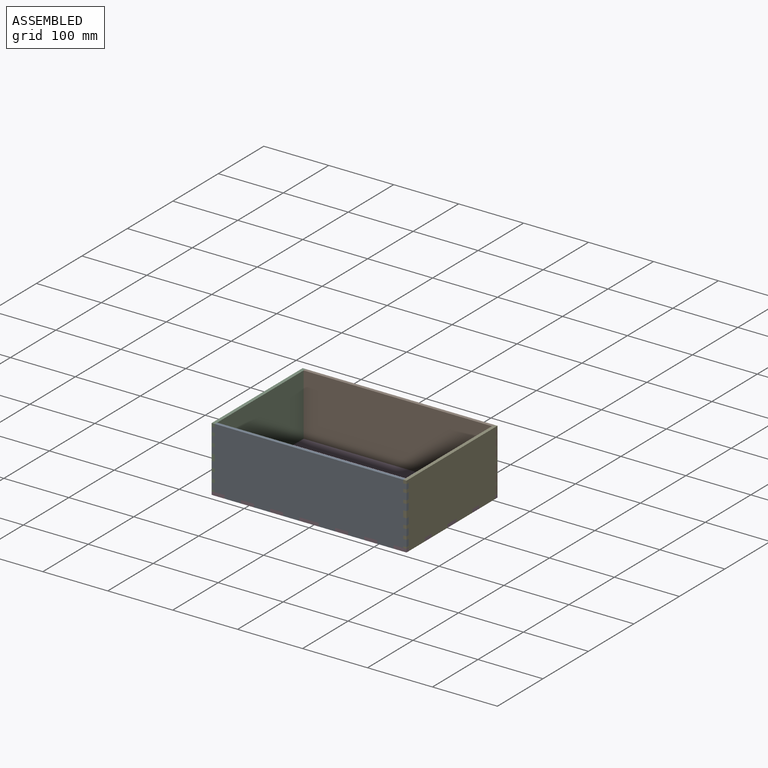
[diagram: assembled view]
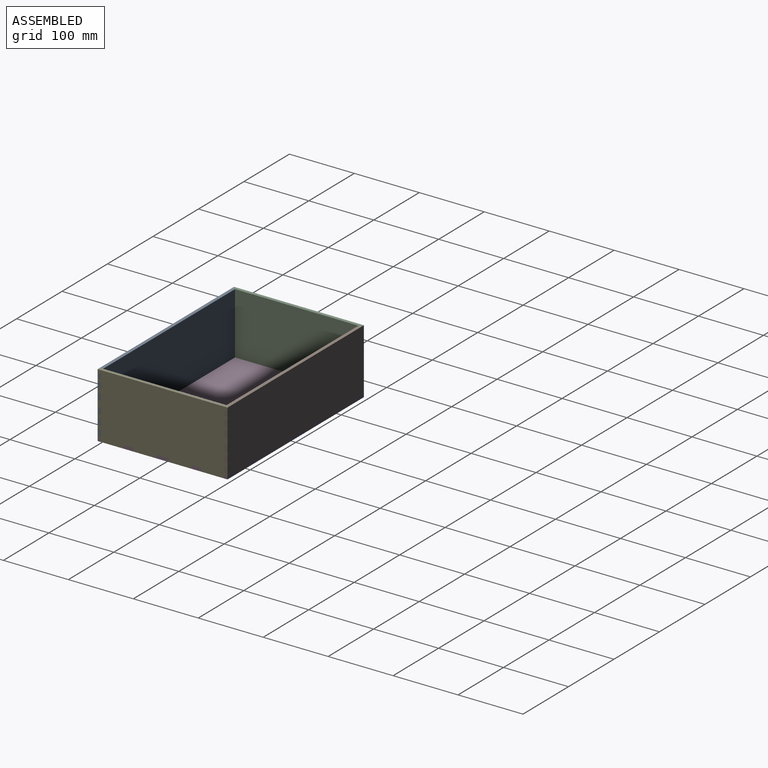
[diagram: assembled view, second angle]
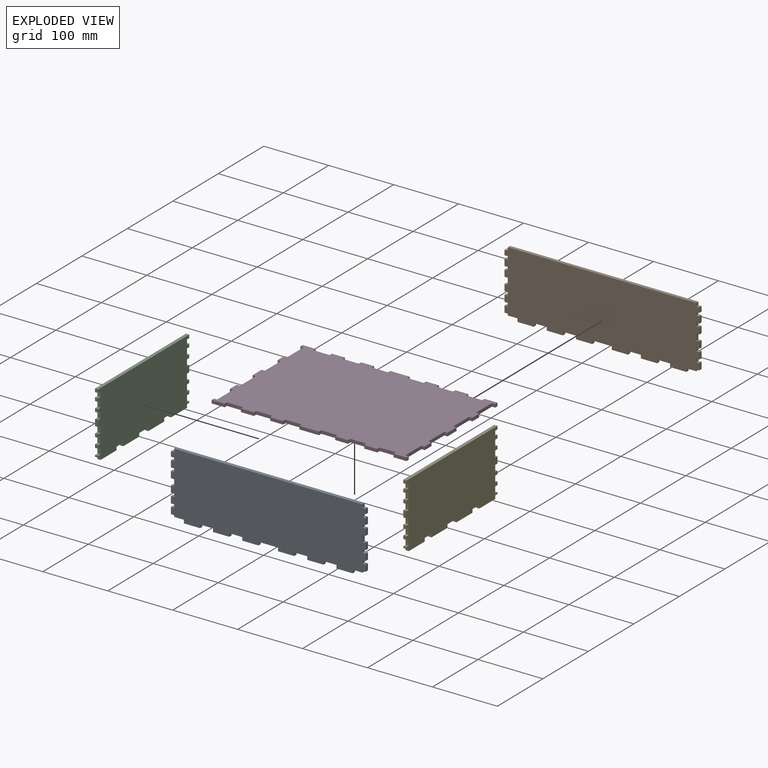
[diagram: exploded view]
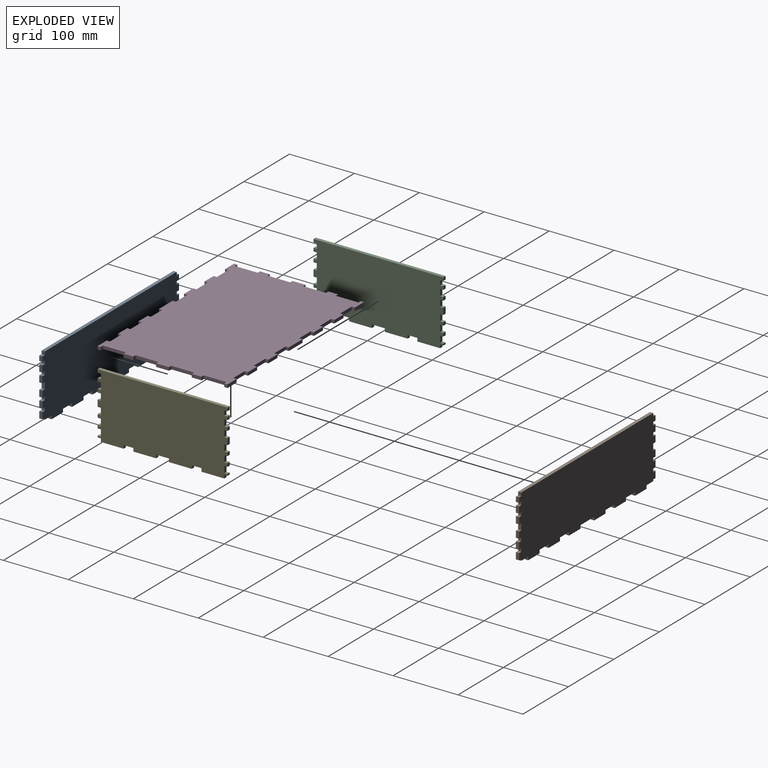
[diagram: exploded view, second angle]
ASSEMBLY  parts=5 mates=4
PART A: 78 faces, bbox 300x5x100 mm
  f0: plane 7.5x5mm, normal (-1,0,0), area 37.5mm2, adj f6,f7,f73,f75
  f1: plane 10x5mm, normal (-1,0,0), area 50mm2, adj f6,f7,f68,f72
  f2: plane 10x5mm, normal (-1,0,0), area 50mm2, adj f6,f7,f65,f70
  f3: plane 10x5mm, normal (-1,0,0), area 50mm2, adj f6,f7,f62,f67
  f4: plane 10x5mm, normal (-1,0,0), area 50mm2, adj f6,f7,f59,f64
  f5: plane 10x5mm, normal (-1,0,0), area 50mm2, adj f6,f7,f61,f76
  f6: plane 300x100mm, normal (0,1,0), area 28875mm2, adj f0,f1,f2,f3,f4,f5,f8,f9
  f7: plane 300x100mm, normal (0,-1,0), area 28875mm2, adj f0,f1,f2,f3,f4,f5,f8,f9
  f8: plane 30x5mm, normal (0,0,-1), area 150mm2, adj f6,f7,f45,f58
  f9: plane 20x5mm, normal (0,0,-1), area 100mm2, adj f6,f7,f49,f57
  f10: plane 20x5mm, normal (0,0,-1), area 100mm2, adj f6,f7,f42,f55
  f11: plane 20x5mm, normal (0,0,-1), area 100mm2, adj f6,f7,f48,f52
  f12: plane 15x5mm, normal (0,0,-1), area 75mm2, adj f6,f7,f51,f77
  f13: plane 20x5mm, normal (0,0,-1), area 100mm2, adj f6,f7,f46,f54
  f14: plane 15x5mm, normal (0,0,-1), area 75mm2, adj f6,f7,f20,f43
  f15: plane 5x5mm, normal (1,0,0), area 25mm2, adj f6,f7,f37,f38
  f16: plane 5x5mm, normal (1,0,0), area 25mm2, adj f6,f7,f34,f35
  f17: plane 10x5mm, normal (1,0,0), area 50mm2, adj f6,f7,f31,f33
  f18: plane 5x5mm, normal (1,0,0), area 25mm2, adj f6,f7,f28,f30
  f19: plane 5x5mm, normal (1,0,0), area 25mm2, adj f6,f7,f25,f27
  f20: plane 5x2.5mm, normal (1,0,0), area 12.5mm2, adj f6,f7,f14,f40
  f21: plane 5x5mm, normal (1,0,0), area 25mm2, adj f6,f7,f22,f24
  f22: plane 290x5mm, normal (0,0,1), area 1450mm2, adj f6,f7,f21,f74
  f23: plane 7.5x5mm, normal (1,0,0), area 37.5mm2, adj f6,f7,f24,f25
  f24: plane 5x5mm, normal (0,0,1), area 25mm2, adj f6,f7,f21,f23
  f25: plane 5x5mm, normal (0,0,-1), area 25mm2, adj f6,f7,f19,f23
  f26: plane 10x5mm, normal (1,0,0), area 50mm2, adj f6,f7,f27,f28
  f27: plane 5x5mm, normal (0,0,1), area 25mm2, adj f6,f7,f19,f26
  f28: plane 5x5mm, normal (0,0,-1), area 25mm2, adj f6,f7,f18,f26
  f29: plane 10x5mm, normal (1,0,0), area 50mm2, adj f6,f7,f30,f31
  f30: plane 5x5mm, normal (0,0,1), area 25mm2, adj f6,f7,f18,f29
  f31: plane 5x5mm, normal (0,0,-1), area 25mm2, adj f6,f7,f17,f29
  f32: plane 10x5mm, normal (1,0,0), area 50mm2, adj f6,f7,f33,f34
  f33: plane 5x5mm, normal (0,0,1), area 25mm2, adj f6,f7,f17,f32
  f34: plane 5x5mm, normal (0,0,-1), area 25mm2, adj f6,f7,f16,f32
  f35: plane 5x5mm, normal (0,0,1), area 25mm2, adj f6,f7,f16,f36
  f36: plane 10x5mm, normal (1,0,0), area 50mm2, adj f6,f7,f35,f37
  f37: plane 5x5mm, normal (0,0,-1), area 25mm2, adj f6,f7,f15,f36
  f38: plane 5x5mm, normal (0,0,1), area 25mm2, adj f6,f7,f15,f39
  f39: plane 10x5mm, normal (1,0,0), area 50mm2, adj f6,f7,f38,f40
  f40: plane 5x5mm, normal (0,0,-1), area 25mm2, adj f6,f7,f20,f39
  f41: plane 25x5mm, normal (0,0,-1), area 125mm2, adj f6,f7,f42,f43
  f42: plane 5x5mm, normal (-1,0,0), area 25mm2, adj f6,f7,f10,f41
  f43: plane 5x5mm, normal (1,0,0), area 25mm2, adj f6,f7,f14,f41
  f44: plane 25x5mm, normal (0,0,-1), area 125mm2, adj f6,f7,f45,f46
  f45: plane 5x5mm, normal (-1,0,0), area 25mm2, adj f6,f7,f8,f44
  f46: plane 5x5mm, normal (1,0,0), area 25mm2, adj f6,f7,f13,f44
  f47: plane 25x5mm, normal (0,0,-1), area 125mm2, adj f6,f7,f48,f49
  f48: plane 5x5mm, normal (-1,0,0), area 25mm2, adj f6,f7,f11,f47
  f49: plane 5x5mm, normal (1,0,0), area 25mm2, adj f6,f7,f9,f47
  f50: plane 25x5mm, normal (0,0,-1), area 125mm2, adj f6,f7,f51,f52
  f51: plane 5x5mm, normal (-1,0,0), area 25mm2, adj f6,f7,f12,f50
  f52: plane 5x5mm, normal (1,0,0), area 25mm2, adj f6,f7,f11,f50
  f53: plane 25x5mm, normal (0,0,-1), area 125mm2, adj f6,f7,f54,f55
  f54: plane 5x5mm, normal (-1,0,0), area 25mm2, adj f6,f7,f13,f53
  f55: plane 5x5mm, normal (1,0,0), area 25mm2, adj f6,f7,f10,f53
  f56: plane 25x5mm, normal (0,0,-1), area 125mm2, adj f6,f7,f57,f58
  f57: plane 5x5mm, normal (-1,0,0), area 25mm2, adj f6,f7,f9,f56
  f58: plane 5x5mm, normal (1,0,0), area 25mm2, adj f6,f7,f8,f56
  f59: plane 5x5mm, normal (0,0,-1), area 25mm2, adj f4,f6,f7,f60
  f60: plane 5x5mm, normal (-1,0,0), area 25mm2, adj f6,f7,f59,f61
  f61: plane 5x5mm, normal (0,0,1), area 25mm2, adj f5,f6,f7,f60
  f62: plane 5x5mm, normal (0,0,-1), area 25mm2, adj f3,f6,f7,f63
  f63: plane 5x5mm, normal (-1,0,0), area 25mm2, adj f6,f7,f62,f64
  f64: plane 5x5mm, normal (0,0,1), area 25mm2, adj f4,f6,f7,f63
  f65: plane 5x5mm, normal (0,0,-1), area 25mm2, adj f2,f6,f7,f66
  f66: plane 10x5mm, normal (-1,0,0), area 50mm2, adj f6,f7,f65,f67
  f67: plane 5x5mm, normal (0,0,1), area 25mm2, adj f3,f6,f7,f66
  f68: plane 5x5mm, normal (0,0,-1), area 25mm2, adj f1,f6,f7,f69
  f69: plane 5x5mm, normal (-1,0,0), area 25mm2, adj f6,f7,f68,f70
  f70: plane 5x5mm, normal (0,0,1), area 25mm2, adj f2,f6,f7,f69
  f71: plane 5x5mm, normal (-1,0,0), area 25mm2, adj f6,f7,f72,f73
  f72: plane 5x5mm, normal (0,0,1), area 25mm2, adj f1,f6,f7,f71
  f73: plane 5x5mm, normal (0,0,-1), area 25mm2, adj f0,f6,f7,f71
  f74: plane 5x5mm, normal (-1,0,0), area 25mm2, adj f6,f7,f22,f75
  f75: plane 5x5mm, normal (0,0,1), area 25mm2, adj f0,f6,f7,f74
  f76: plane 5x5mm, normal (0,0,-1), area 25mm2, adj f5,f6,f7,f77
  f77: plane 5x2.5mm, normal (-1,0,0), area 12.5mm2, adj f6,f7,f12,f76
PART B: same geometry as A
PART C: 70 faces, bbox 5x200x100 mm
  f0: plane 10x5mm, normal (0,1,0), area 50mm2, adj f12,f13,f45,f68
  f1: plane 5x5mm, normal (0,1,0), area 25mm2, adj f12,f13,f64,f69
  f2: plane 5x5mm, normal (0,1,0), area 25mm2, adj f12,f13,f61,f66
  f3: plane 5x5mm, normal (0,1,0), area 25mm2, adj f12,f13,f42,f44
  f4: plane 5x5mm, normal (0,1,0), area 25mm2, adj f12,f13,f39,f41
  f5: plane 5x5mm, normal (0,1,0), area 25mm2, adj f12,f13,f20,f38
  f6: plane 5x5mm, normal (0,-1,0), area 25mm2, adj f12,f13,f56,f58
  f7: plane 5x5mm, normal (0,-1,0), area 25mm2, adj f12,f13,f53,f55
  f8: plane 10x5mm, normal (0,-1,0), area 50mm2, adj f12,f13,f51,f52
  f9: plane 5x5mm, normal (0,-1,0), area 25mm2, adj f12,f13,f48,f50
  f10: plane 5x5mm, normal (0,-1,0), area 25mm2, adj f12,f13,f36,f47
  f11: plane 5x5mm, normal (0,-1,0), area 25mm2, adj f12,f13,f20,f35
  f12: plane 200x100mm, normal (-1,0,0), area 19125mm2, adj f0,f1,f2,f3,f4,f5,f6,f7
  f13: plane 200x100mm, normal (1,0,0), area 19125mm2, adj f0,f1,f2,f3,f4,f5,f6,f7
  f14: plane 15x5mm, normal (0,0,-1), area 75mm2, adj f12,f13,f23,f31
  f15: plane 20x5mm, normal (0,0,-1), area 100mm2, adj f12,f13,f28,f32
  f16: plane 15x5mm, normal (0,0,-1), area 75mm2, adj f12,f13,f25,f29
  f17: plane 5x5mm, normal (0,0,-1), area 25mm2, adj f12,f13,f18,f22
  f18: plane 5x2.5mm, normal (0,1,0), area 12.5mm2, adj f12,f13,f17,f63
  f19: plane 5x2.5mm, normal (0,-1,0), area 12.5mm2, adj f12,f13,f21,f59
  f20: plane 200x5mm, normal (0,0,1), area 1000mm2, adj f5,f11,f12,f13
  f21: plane 5x5mm, normal (0,0,-1), area 25mm2, adj f12,f13,f19,f26
  f22: plane 5x5mm, normal (0,1,0), area 25mm2, adj f12,f13,f17,f24
  f23: plane 5x5mm, normal (0,-1,0), area 25mm2, adj f12,f13,f14,f24
  f24: plane 35x5mm, normal (0,0,-1), area 175mm2, adj f12,f13,f22,f23
  f25: plane 5x5mm, normal (0,1,0), area 25mm2, adj f12,f13,f16,f27
  f26: plane 5x5mm, normal (0,-1,0), area 25mm2, adj f12,f13,f21,f27
  f27: plane 35x5mm, normal (0,0,-1), area 175mm2, adj f12,f13,f25,f26
  f28: plane 5x5mm, normal (0,1,0), area 25mm2, adj f12,f13,f15,f30
  f29: plane 5x5mm, normal (0,-1,0), area 25mm2, adj f12,f13,f16,f30
  f30: plane 35x5mm, normal (0,0,-1), area 175mm2, adj f12,f13,f28,f29
  f31: plane 5x5mm, normal (0,1,0), area 25mm2, adj f12,f13,f14,f33
  f32: plane 5x5mm, normal (0,-1,0), area 25mm2, adj f12,f13,f15,f33
  f33: plane 35x5mm, normal (0,0,-1), area 175mm2, adj f12,f13,f31,f32
  f34: plane 7.5x5mm, normal (0,-1,0), area 37.5mm2, adj f12,f13,f35,f36
  f35: plane 5x5mm, normal (0,0,-1), area 25mm2, adj f11,f12,f13,f34
  f36: plane 5x5mm, normal (0,0,1), area 25mm2, adj f10,f12,f13,f34
  f37: plane 7.5x5mm, normal (0,1,0), area 37.5mm2, adj f12,f13,f38,f39
  f38: plane 5x5mm, normal (0,0,-1), area 25mm2, adj f5,f12,f13,f37
  f39: plane 5x5mm, normal (0,0,1), area 25mm2, adj f4,f12,f13,f37
  f40: plane 10x5mm, normal (0,1,0), area 50mm2, adj f12,f13,f41,f42
  f41: plane 5x5mm, normal (0,0,-1), area 25mm2, adj f4,f12,f13,f40
  f42: plane 5x5mm, normal (0,0,1), area 25mm2, adj f3,f12,f13,f40
  f43: plane 10x5mm, normal (0,1,0), area 50mm2, adj f12,f13,f44,f45
  f44: plane 5x5mm, normal (0,0,-1), area 25mm2, adj f3,f12,f13,f43
  f45: plane 5x5mm, normal (0,0,1), area 25mm2, adj f0,f12,f13,f43
  f46: plane 10x5mm, normal (0,-1,0), area 50mm2, adj f12,f13,f47,f48
  f47: plane 5x5mm, normal (0,0,-1), area 25mm2, adj f10,f12,f13,f46
  f48: plane 5x5mm, normal (0,0,1), area 25mm2, adj f9,f12,f13,f46
  f49: plane 10x5mm, normal (0,-1,0), area 50mm2, adj f12,f13,f50,f51
  f50: plane 5x5mm, normal (0,0,-1), area 25mm2, adj f9,f12,f13,f49
  f51: plane 5x5mm, normal (0,0,1), area 25mm2, adj f8,f12,f13,f49
  f52: plane 5x5mm, normal (0,0,-1), area 25mm2, adj f8,f12,f13,f54
  f53: plane 5x5mm, normal (0,0,1), area 25mm2, adj f7,f12,f13,f54
  f54: plane 10x5mm, normal (0,-1,0), area 50mm2, adj f12,f13,f52,f53
  f55: plane 5x5mm, normal (0,0,-1), area 25mm2, adj f7,f12,f13,f57
  f56: plane 5x5mm, normal (0,0,1), area 25mm2, adj f6,f12,f13,f57
  f57: plane 10x5mm, normal (0,-1,0), area 50mm2, adj f12,f13,f55,f56
  f58: plane 5x5mm, normal (0,0,-1), area 25mm2, adj f6,f12,f13,f60
  f59: plane 5x5mm, normal (0,0,1), area 25mm2, adj f12,f13,f19,f60
  f60: plane 10x5mm, normal (0,-1,0), area 50mm2, adj f12,f13,f58,f59
  f61: plane 5x5mm, normal (0,0,-1), area 25mm2, adj f2,f12,f13,f62
  f62: plane 10x5mm, normal (0,1,0), area 50mm2, adj f12,f13,f61,f63
  f63: plane 5x5mm, normal (0,0,1), area 25mm2, adj f12,f13,f18,f62
  f64: plane 5x5mm, normal (0,0,-1), area 25mm2, adj f1,f12,f13,f65
  f65: plane 10x5mm, normal (0,1,0), area 50mm2, adj f12,f13,f64,f66
  f66: plane 5x5mm, normal (0,0,1), area 25mm2, adj f2,f12,f13,f65
  f67: plane 10x5mm, normal (0,1,0), area 50mm2, adj f12,f13,f68,f69
  f68: plane 5x5mm, normal (0,0,-1), area 25mm2, adj f0,f12,f13,f67
  f69: plane 5x5mm, normal (0,0,1), area 25mm2, adj f1,f12,f13,f67
PART D: 86 faces, bbox 300x200x5 mm
  f0: plane 35x5mm, normal (1,0,0), area 175mm2, adj f1,f83,f84,f85
  f1: plane 5x5mm, normal (0,-1,0), area 25mm2, adj f0,f2,f84,f85
  f2: plane 15x5mm, normal (1,0,0), area 75mm2, adj f1,f3,f84,f85
  f3: plane 5x5mm, normal (0,1,0), area 25mm2, adj f2,f4,f84,f85
  f4: plane 35x5mm, normal (1,0,0), area 175mm2, adj f3,f5,f84,f85
  f5: plane 5x5mm, normal (0,-1,0), area 25mm2, adj f4,f6,f84,f85
  f6: plane 20x5mm, normal (1,0,0), area 100mm2, adj f5,f7,f84,f85
  f7: plane 5x5mm, normal (0,1,0), area 25mm2, adj f6,f8,f84,f85
  f8: plane 35x5mm, normal (1,0,0), area 175mm2, adj f7,f9,f84,f85
  f9: plane 5x5mm, normal (0,-1,0), area 25mm2, adj f8,f10,f84,f85
  f10: plane 15x5mm, normal (1,0,0), area 75mm2, adj f9,f11,f84,f85
  f11: plane 5x5mm, normal (0,1,0), area 25mm2, adj f10,f12,f84,f85
  f12: plane 35x5mm, normal (1,0,0), area 175mm2, adj f11,f13,f84,f85
  f13: plane 5x5mm, normal (0,-1,0), area 25mm2, adj f12,f14,f84,f85
  f14: plane 5x5mm, normal (1,0,0), area 25mm2, adj f13,f15,f84,f85
  f15: plane 20x5mm, normal (0,1,0), area 100mm2, adj f14,f16,f84,f85
  f16: plane 5x5mm, normal (-1,0,0), area 25mm2, adj f15,f17,f84,f85
  f17: plane 25x5mm, normal (0,1,0), area 125mm2, adj f16,f18,f84,f85
  f18: plane 5x5mm, normal (1,0,0), area 25mm2, adj f17,f19,f84,f85
  f19: plane 20x5mm, normal (0,1,0), area 100mm2, adj f18,f20,f84,f85
  f20: plane 5x5mm, normal (-1,0,0), area 25mm2, adj f19,f21,f84,f85
  f21: plane 25x5mm, normal (0,1,0), area 125mm2, adj f20,f22,f84,f85
  f22: plane 5x5mm, normal (1,0,0), area 25mm2, adj f21,f23,f84,f85
  f23: plane 20x5mm, normal (0,1,0), area 100mm2, adj f22,f24,f84,f85
  f24: plane 5x5mm, normal (-1,0,0), area 25mm2, adj f23,f25,f84,f85
  f25: plane 25x5mm, normal (0,1,0), area 125mm2, adj f24,f26,f84,f85
  f26: plane 5x5mm, normal (1,0,0), area 25mm2, adj f25,f27,f84,f85
  f27: plane 30x5mm, normal (0,1,0), area 150mm2, adj f26,f28,f84,f85
  f28: plane 5x5mm, normal (-1,0,0), area 25mm2, adj f27,f29,f84,f85
  f29: plane 25x5mm, normal (0,1,0), area 125mm2, adj f28,f30,f84,f85
  f30: plane 5x5mm, normal (1,0,0), area 25mm2, adj f29,f31,f84,f85
  f31: plane 20x5mm, normal (0,1,0), area 100mm2, adj f30,f32,f84,f85
  f32: plane 5x5mm, normal (-1,0,0), area 25mm2, adj f31,f33,f84,f85
  f33: plane 25x5mm, normal (0,1,0), area 125mm2, adj f32,f34,f84,f85
  f34: plane 5x5mm, normal (1,0,0), area 25mm2, adj f33,f35,f84,f85
  f35: plane 20x5mm, normal (0,1,0), area 100mm2, adj f34,f36,f84,f85
  f36: plane 5x5mm, normal (-1,0,0), area 25mm2, adj f35,f37,f84,f85
  f37: plane 25x5mm, normal (0,1,0), area 125mm2, adj f36,f38,f84,f85
  f38: plane 5x5mm, normal (1,0,0), area 25mm2, adj f37,f39,f84,f85
  f39: plane 20x5mm, normal (0,1,0), area 100mm2, adj f38,f40,f84,f85
  f40: plane 5x5mm, normal (-1,0,0), area 25mm2, adj f39,f41,f84,f85
  f41: plane 5x5mm, normal (0,-1,0), area 25mm2, adj f40,f42,f84,f85
  f42: plane 35x5mm, normal (-1,0,0), area 175mm2, adj f41,f43,f84,f85
  f43: plane 5x5mm, normal (0,1,0), area 25mm2, adj f42,f44,f84,f85
  f44: plane 15x5mm, normal (-1,0,0), area 75mm2, adj f43,f45,f84,f85
  f45: plane 5x5mm, normal (0,-1,0), area 25mm2, adj f44,f46,f84,f85
  f46: plane 35x5mm, normal (-1,0,0), area 175mm2, adj f45,f47,f84,f85
  f47: plane 5x5mm, normal (0,1,0), area 25mm2, adj f46,f48,f84,f85
  f48: plane 20x5mm, normal (-1,0,0), area 100mm2, adj f47,f49,f84,f85
  f49: plane 5x5mm, normal (0,-1,0), area 25mm2, adj f48,f50,f84,f85
  f50: plane 35x5mm, normal (-1,0,0), area 175mm2, adj f49,f51,f84,f85
  f51: plane 5x5mm, normal (0,1,0), area 25mm2, adj f50,f52,f84,f85
  f52: plane 15x5mm, normal (-1,0,0), area 75mm2, adj f51,f53,f84,f85
  f53: plane 5x5mm, normal (0,-1,0), area 25mm2, adj f52,f54,f84,f85
  f54: plane 35x5mm, normal (-1,0,0), area 175mm2, adj f53,f55,f84,f85
  f55: plane 5x5mm, normal (0,1,0), area 25mm2, adj f54,f56,f84,f85
  f56: plane 5x5mm, normal (-1,0,0), area 25mm2, adj f55,f57,f84,f85
  f57: plane 20x5mm, normal (0,-1,0), area 100mm2, adj f56,f58,f84,f85
  f58: plane 5x5mm, normal (1,0,0), area 25mm2, adj f57,f59,f84,f85
  f59: plane 25x5mm, normal (0,-1,0), area 125mm2, adj f58,f60,f84,f85
  f60: plane 5x5mm, normal (-1,0,0), area 25mm2, adj f59,f61,f84,f85
  f61: plane 20x5mm, normal (0,-1,0), area 100mm2, adj f60,f62,f84,f85
  f62: plane 5x5mm, normal (1,0,0), area 25mm2, adj f61,f63,f84,f85
  f63: plane 25x5mm, normal (0,-1,0), area 125mm2, adj f62,f64,f84,f85
  f64: plane 5x5mm, normal (-1,0,0), area 25mm2, adj f63,f65,f84,f85
  f65: plane 20x5mm, normal (0,-1,0), area 100mm2, adj f64,f66,f84,f85
  f66: plane 5x5mm, normal (1,0,0), area 25mm2, adj f65,f67,f84,f85
  f67: plane 25x5mm, normal (0,-1,0), area 125mm2, adj f66,f68,f84,f85
  f68: plane 5x5mm, normal (-1,0,0), area 25mm2, adj f67,f69,f84,f85
  f69: plane 30x5mm, normal (0,-1,0), area 150mm2, adj f68,f70,f84,f85
  f70: plane 5x5mm, normal (1,0,0), area 25mm2, adj f69,f71,f84,f85
  f71: plane 25x5mm, normal (0,-1,0), area 125mm2, adj f70,f72,f84,f85
  f72: plane 5x5mm, normal (-1,0,0), area 25mm2, adj f71,f73,f84,f85
  f73: plane 20x5mm, normal (0,-1,0), area 100mm2, adj f72,f74,f84,f85
  f74: plane 5x5mm, normal (1,0,0), area 25mm2, adj f73,f75,f84,f85
  f75: plane 25x5mm, normal (0,-1,0), area 125mm2, adj f74,f76,f84,f85
  f76: plane 5x5mm, normal (-1,0,0), area 25mm2, adj f75,f77,f84,f85
  f77: plane 20x5mm, normal (0,-1,0), area 100mm2, adj f76,f78,f84,f85
  f78: plane 5x5mm, normal (1,0,0), area 25mm2, adj f77,f79,f84,f85
  f79: plane 25x5mm, normal (0,-1,0), area 125mm2, adj f78,f80,f84,f85
  f80: plane 5x5mm, normal (-1,0,0), area 25mm2, adj f79,f81,f84,f85
  f81: plane 20x5mm, normal (0,-1,0), area 100mm2, adj f80,f82,f84,f85
  f82: plane 5x5mm, normal (1,0,0), area 25mm2, adj f81,f83,f84,f85
  f83: plane 5x5mm, normal (0,1,0), area 25mm2, adj f0,f82,f84,f85
  f84: plane 300x200mm, normal (0,0,1), area 57100mm2, adj f0,f1,f2,f3,f4,f5,f6,f7
  f85: plane 300x200mm, normal (0,0,-1), area 57100mm2, adj f0,f1,f2,f3,f4,f5,f6,f7
PART E: same geometry as C
PLACE A t=(0,-195,0)mm
PLACE B at identity
PLACE C t=(-295,0,0)mm
PLACE D at identity
PLACE E at identity
MATE fastened A.f7 <-> D.f57  axis (0,-1,0) through (-130,-100,5)mm
MATE fastened E.f13 <-> D.f82  axis (1,0,0) through (150,-95,0)mm
MATE fastened C.f12 <-> D.f44  axis (-1,0,0) through (-150,60,5)mm
MATE fastened D.f15 <-> B.f6  axis (0,1,0) through (130,100,5)mm
